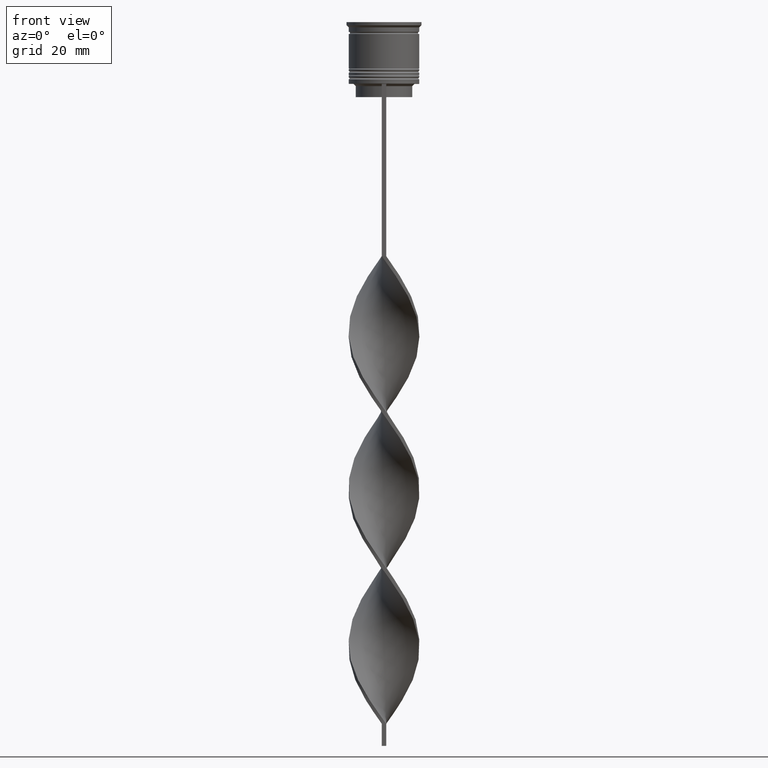
[diagram: clean part render]
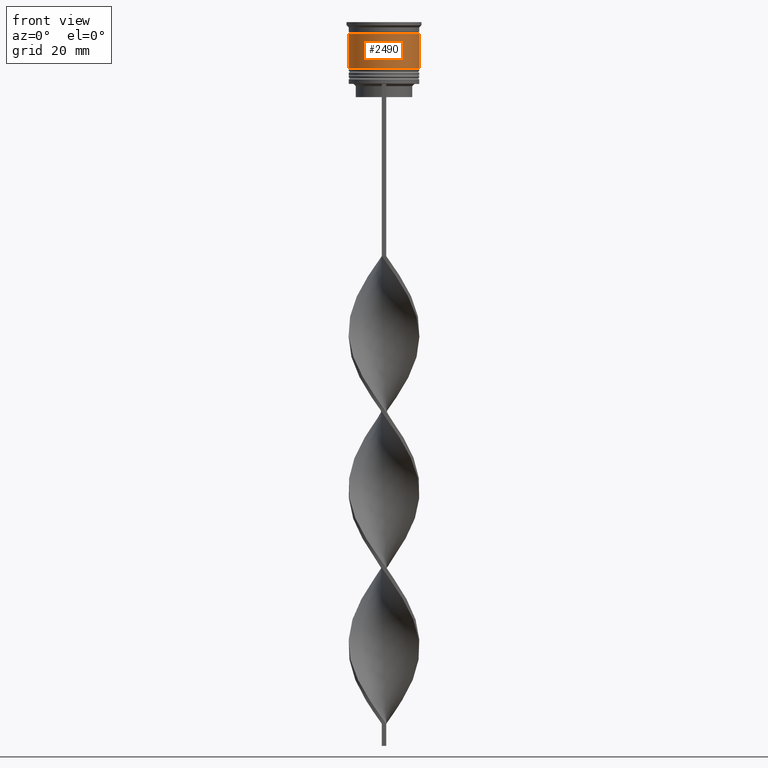
[diagram: same view with one face highlighted and labeled with its STEP entity id]
A machine part, front view. The second image highlights one B-rep face of the part: STEP entity #2490.
In plain terms, the highlighted cylindrical surface (edge-blend (fillet) strip) has radius 8 mm, axis along (-0, -0, 1).
Its self-contained STEP definition (entity closure, byte-faithful):
#52 = VERTEX_POINT ( 'NONE', #829 ) ;
#89 = DIRECTION ( 'NONE',  ( 1.000000000000000000, 0.000000000000000000, 0.000000000000000000 ) ) ;
#505 = ORIENTED_EDGE ( 'NONE', *, *, #926, .T. ) ;
#562 = EDGE_CURVE ( 'NONE', #3606, #52, #2647, .T. ) ;
#618 = AXIS2_PLACEMENT_3D ( 'NONE', #3093, #1884, #2513 ) ;
#711 = LINE ( 'NONE', #2096, #3274 ) ;
#747 = AXIS2_PLACEMENT_3D ( 'NONE', #1035, #3392, #1653 ) ;
#829 = CARTESIAN_POINT ( 'NONE',  ( 7.999999999999998224, 0.000000000000000000, -2.700000000000001510 ) ) ;
#926 = EDGE_CURVE ( 'NONE', #2432, #52, #1152, .T. ) ;
#1008 = CARTESIAN_POINT ( 'NONE',  ( 0.000000000000000000, 0.000000000000000000, -2.700000000000001510 ) ) ;
#1035 = CARTESIAN_POINT ( 'NONE',  ( 0.000000000000000000, 0.000000000000000000, -10.50000000000000000 ) ) ;
#1036 = VERTEX_POINT ( 'NONE', #2330 ) ;
#1077 = FACE_OUTER_BOUND ( 'NONE', #2454, .T. ) ;
#1152 = LINE ( 'NONE', #3170, #2174 ) ;
#1450 = ORIENTED_EDGE ( 'NONE', *, *, #2801, .T. ) ;
#1515 = AXIS2_PLACEMENT_3D ( 'NONE', #1008, #2675, #89 ) ;
#1653 = DIRECTION ( 'NONE',  ( 1.000000000000000000, 0.000000000000000000, 0.000000000000000000 ) ) ;
#1884 = DIRECTION ( 'NONE',  ( -0.000000000000000000, -0.000000000000000000, 1.000000000000000000 ) ) ;
#2096 = CARTESIAN_POINT ( 'NONE',  ( -8.000000000000000000, 9.797174393178825657E-16, 0.000000000000000000 ) ) ;
#2138 = DIRECTION ( 'NONE',  ( -0.000000000000000000, -0.000000000000000000, 1.000000000000000000 ) ) ;
#2158 = CYLINDRICAL_SURFACE ( 'NONE', #618, 8.000000000000000000 ) ;
#2167 = ORIENTED_EDGE ( 'NONE', *, *, #562, .F. ) ;
#2174 = VECTOR ( 'NONE', #2597, 1000.000000000000000 ) ;
#2330 = CARTESIAN_POINT ( 'NONE',  ( -8.000000000000001776, 9.797174393178827630E-16, -10.50000000000000000 ) ) ;
#2359 = CIRCLE ( 'NONE', #747, 8.000000000000001776 ) ;
#2432 = VERTEX_POINT ( 'NONE', #3359 ) ;
#2454 = EDGE_LOOP ( 'NONE', ( #3574, #1450, #505, #2167 ) ) ;
#2490 = ADVANCED_FACE ( 'NONE', ( #1077 ), #2158, .T. ) ;
#2513 = DIRECTION ( 'NONE',  ( 1.000000000000000000, 0.000000000000000000, 0.000000000000000000 ) ) ;
#2597 = DIRECTION ( 'NONE',  ( -0.000000000000000000, -0.000000000000000000, 1.000000000000000000 ) ) ;
#2614 = EDGE_CURVE ( 'NONE', #1036, #3606, #711, .T. ) ;
#2647 = CIRCLE ( 'NONE', #1515, 7.999999999999998224 ) ;
#2674 = CARTESIAN_POINT ( 'NONE',  ( -7.999999999999998224, 9.797174393178823685E-16, -2.700000000000001510 ) ) ;
#2675 = DIRECTION ( 'NONE',  ( -0.000000000000000000, -0.000000000000000000, 1.000000000000000000 ) ) ;
#2801 = EDGE_CURVE ( 'NONE', #1036, #2432, #2359, .T. ) ;
#3093 = CARTESIAN_POINT ( 'NONE',  ( 0.000000000000000000, 0.000000000000000000, 0.000000000000000000 ) ) ;
#3170 = CARTESIAN_POINT ( 'NONE',  ( 8.000000000000000000, 0.000000000000000000, 0.000000000000000000 ) ) ;
#3274 = VECTOR ( 'NONE', #2138, 1000.000000000000000 ) ;
#3359 = CARTESIAN_POINT ( 'NONE',  ( 8.000000000000001776, 0.000000000000000000, -10.50000000000000000 ) ) ;
#3392 = DIRECTION ( 'NONE',  ( -0.000000000000000000, -0.000000000000000000, 1.000000000000000000 ) ) ;
#3574 = ORIENTED_EDGE ( 'NONE', *, *, #2614, .F. ) ;
#3606 = VERTEX_POINT ( 'NONE', #2674 ) ;